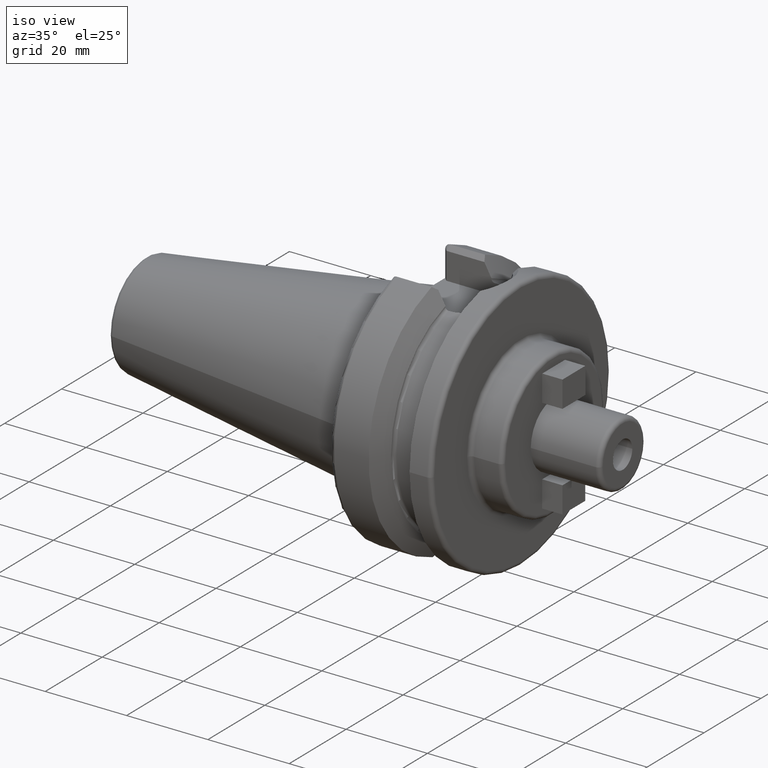
[diagram: clean part render]
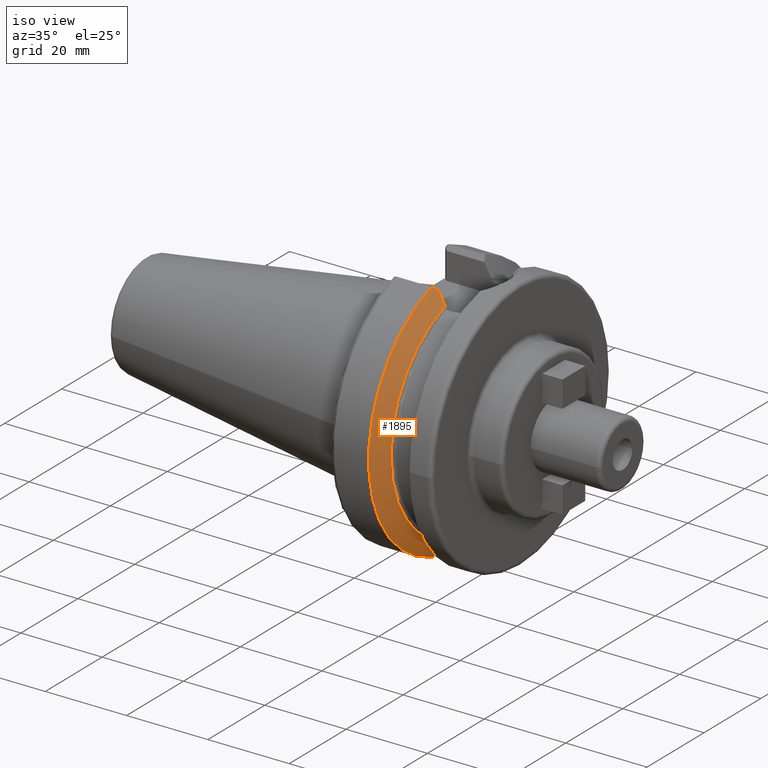
[diagram: same view with one face highlighted and labeled with its STEP entity id]
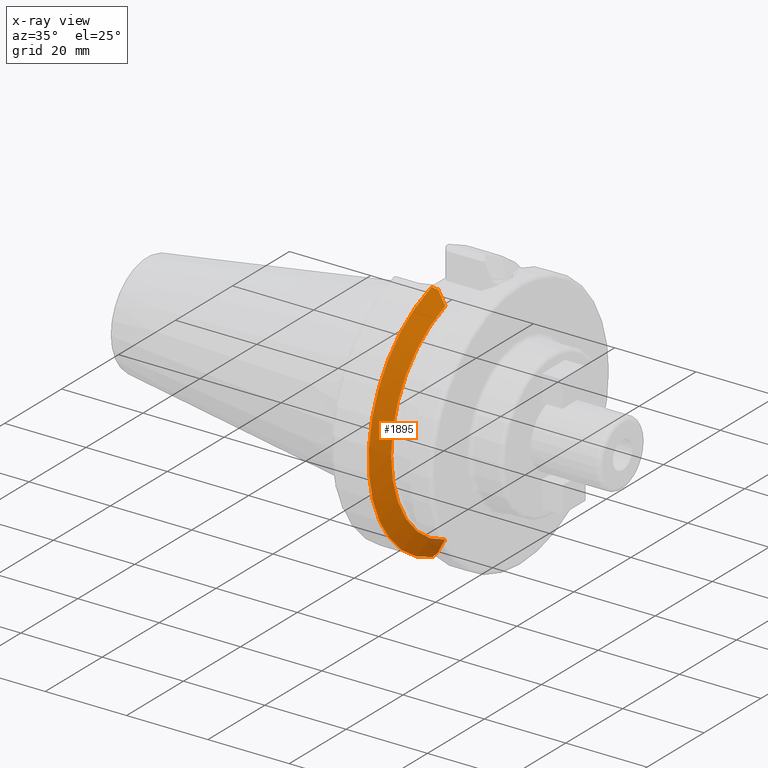
[diagram: x-ray of the same camera — body ghosted, the highlighted face saturated]
A machine part, iso view. The second image highlights one B-rep face of the part: STEP entity #1895.
The next image is the same camera in x-ray: the body ghosted, the highlighted face saturated — about 3% of this face is hidden behind the body in this view.
In plain terms, the highlighted conical surface has half-angle 60 deg.
Its self-contained STEP definition (entity closure, byte-faithful):
#205=CARTESIAN_POINT('',(1.40625E1,0.E0,0.E0));
#206=DIRECTION('',(1.E0,0.E0,0.E0));
#207=DIRECTION('',(0.E0,-2.978832194960E-1,9.546023190537E-1));
#208=AXIS2_PLACEMENT_3D('',#205,#206,#207);
#210=CARTESIAN_POINT('',(1.157272253103E1,0.E0,0.E0));
#211=DIRECTION('',(1.E0,0.E0,0.E0));
#212=DIRECTION('',(0.E0,-2.983189831898E-1,9.544662300305E-1));
#213=AXIS2_PLACEMENT_3D('',#210,#211,#212);
#283=CARTESIAN_POINT('',(1.157272253103E1,-9.052779463114E0,-3.015808084481E1));
#284=CARTESIAN_POINT('',(1.166664976709E1,-8.890092718051E0,-3.003705750519E1));
#285=CARTESIAN_POINT('',(1.185193462301E1,-8.567774254092E0,-2.979728347248E1));
#286=CARTESIAN_POINT('',(1.203209445084E1,-8.251571174555E0,-2.956205869943E1));
#287=CARTESIAN_POINT('',(1.212089730171E1,-8.095E0,-2.944558475789E1));
#331=CARTESIAN_POINT('',(1.40625E1,-8.095E0,-2.594139336151E1));
#332=CARTESIAN_POINT('',(1.385657504808E1,-8.095E0,-2.631502798627E1));
#333=CARTESIAN_POINT('',(1.343816757814E1,-8.095E0,-2.707276272189E1));
#334=CARTESIAN_POINT('',(1.279109429984E1,-8.095E0,-2.824052697941E1));
#335=CARTESIAN_POINT('',(1.234647911565E1,-8.095E0,-2.904036968182E1));
#336=CARTESIAN_POINT('',(1.212089730171E1,-8.095E0,-2.944558475789E1));
#536=CARTESIAN_POINT('',(1.231359829731E1,-8.095E0,2.909928918805E1));
#537=CARTESIAN_POINT('',(1.251575951516E1,-8.095E0,2.873583944049E1));
#538=CARTESIAN_POINT('',(1.291487013940E1,-8.095E0,2.801733166678E1));
#539=CARTESIAN_POINT('',(1.349777805891E1,-8.095E0,2.696486188593E1));
#540=CARTESIAN_POINT('',(1.387600348310E1,-8.095E0,2.627977661939E1));
#541=CARTESIAN_POINT('',(1.40625E1,-8.095E0,2.594139336151E1));
#566=CARTESIAN_POINT('',(1.231359829731E1,-8.095E0,2.909928918805E1));
#567=CARTESIAN_POINT('',(1.219482394511E1,-8.305723816550E0,2.925420394272E1));
#568=CARTESIAN_POINT('',(1.195258450384E1,-8.732839300267E0,2.956820020312E1));
#569=CARTESIAN_POINT('',(1.170091988157E1,-9.171274658654E0,2.989051833068E1));
#570=CARTESIAN_POINT('',(1.157272253103E1,-9.393318983190E0,3.005375541808E1));
#1356=CARTESIAN_POINT('',(1.40625E1,-8.095E0,2.594139336151E1));
#1357=CARTESIAN_POINT('',(1.40625E1,-8.095E0,-2.594139336151E1));
#1358=VERTEX_POINT('',#1356);
#1359=VERTEX_POINT('',#1357);
#1463=VERTEX_POINT('',#536);
#1471=VERTEX_POINT('',#336);
#1474=CARTESIAN_POINT('',(1.157272253103E1,-9.393318983190E0,3.005375541808E1));
#1475=CARTESIAN_POINT('',(1.157272253103E1,-9.052779463114E0,
-3.015808084481E1));
#1476=VERTEX_POINT('',#1474);
#1477=VERTEX_POINT('',#1475);
#1877=CARTESIAN_POINT('',(1.281761126552E1,0.E0,0.E0));
#1878=DIRECTION('',(-1.E0,0.E0,0.E0));
#1879=DIRECTION('',(0.E0,1.E0,0.E0));
#1880=AXIS2_PLACEMENT_3D('',#1877,#1878,#1879);
#1881=CONICAL_SURFACE('',#1880,2.933128946210E1,6.E1);
#1882=ORIENTED_EDGE('',*,*,#1848,.T.);
#1884=ORIENTED_EDGE('',*,*,#1883,.T.);
#1886=ORIENTED_EDGE('',*,*,#1885,.F.);
#1888=ORIENTED_EDGE('',*,*,#1887,.F.);
#1890=ORIENTED_EDGE('',*,*,#1889,.F.);
#1892=ORIENTED_EDGE('',*,*,#1891,.T.);
#1893=EDGE_LOOP('',(#1882,#1884,#1886,#1888,#1890,#1892));
#1894=FACE_OUTER_BOUND('',#1893,.F.);
#1895=ADVANCED_FACE('',(#1894),#1881,.T.);
#209=CIRCLE('',#208,2.717507892421E1);
#214=CIRCLE('',#213,3.14875E1);
#288=B_SPLINE_CURVE_WITH_KNOTS('',3,(#283,#284,#285,#286,#287),.UNSPECIFIED.,
.F.,.F.,(4,1,4),(0.E0,5.E-1,1.E0),.UNSPECIFIED.);
#337=B_SPLINE_CURVE_WITH_KNOTS('',3,(#331,#332,#333,#334,#335,#336),
.UNSPECIFIED.,.F.,.F.,(4,1,1,4),(0.E0,3.333333333333E-1,6.666666666667E-1,1.E0),
.UNSPECIFIED.);
#542=B_SPLINE_CURVE_WITH_KNOTS('',3,(#536,#537,#538,#539,#540,#541),
.UNSPECIFIED.,.F.,.F.,(4,1,1,4),(0.E0,3.333333333333E-1,6.666666666667E-1,1.E0),
.UNSPECIFIED.);
#571=B_SPLINE_CURVE_WITH_KNOTS('',3,(#566,#567,#568,#569,#570),.UNSPECIFIED.,
.F.,.F.,(4,1,4),(0.E0,5.E-1,1.E0),.UNSPECIFIED.);
#1848=EDGE_CURVE('',#1358,#1359,#209,.T.);
#1883=EDGE_CURVE('',#1359,#1471,#337,.T.);
#1885=EDGE_CURVE('',#1477,#1471,#288,.T.);
#1887=EDGE_CURVE('',#1476,#1477,#214,.T.);
#1889=EDGE_CURVE('',#1463,#1476,#571,.T.);
#1891=EDGE_CURVE('',#1463,#1358,#542,.T.);